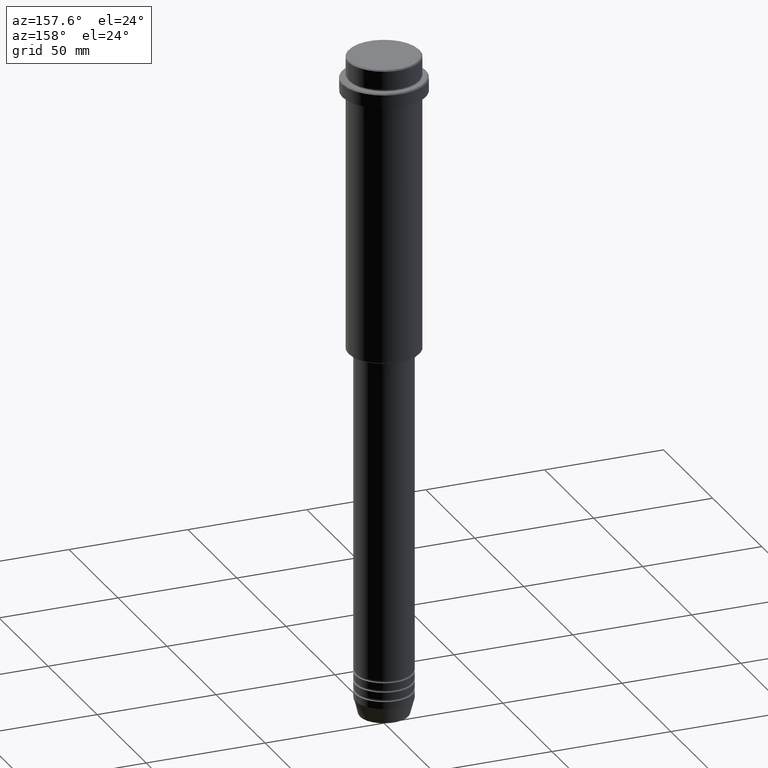
[diagram: clean part render]
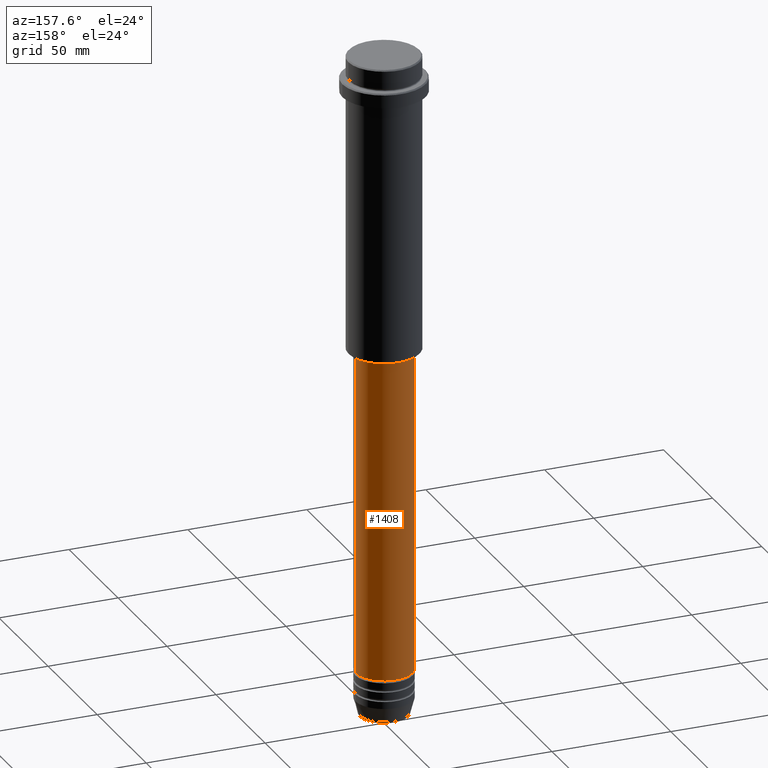
[diagram: same view with one face highlighted and labeled with its STEP entity id]
A machine part, auxiliary view. The second image highlights one B-rep face of the part: STEP entity #1408.
In plain terms, the highlighted cylindrical surface (edge-blend (fillet) strip) has radius 12 mm, axis along (-0, -0, 1).
Its self-contained STEP definition (entity closure, byte-faithful):
#221 = AXIS2_PLACEMENT_3D ( 'NONE', #957, #1078, #1060 ) ;
#238 = CIRCLE ( 'NONE', #1157, 12.00000000000000000 ) ;
#252 = VERTEX_POINT ( 'NONE', #832 ) ;
#264 = ORIENTED_EDGE ( 'NONE', *, *, #1307, .T. ) ;
#279 = CARTESIAN_POINT ( 'NONE',  ( 12.00000000000000000, 0.000000000000000000, -260.9999999999998863 ) ) ;
#280 = LINE ( 'NONE', #933, #1293 ) ;
#281 = EDGE_CURVE ( 'NONE', #1406, #1388, #280, .T. ) ;
#329 = DIRECTION ( 'NONE',  ( -0.000000000000000000, -0.000000000000000000, 1.000000000000000000 ) ) ;
#336 = CARTESIAN_POINT ( 'NONE',  ( -11.99999999999999822, 1.469576158976823750E-15, -126.0000000000001137 ) ) ;
#411 = DIRECTION ( 'NONE',  ( -0.000000000000000000, -0.000000000000000000, 1.000000000000000000 ) ) ;
#526 = ORIENTED_EDGE ( 'NONE', *, *, #1228, .F. ) ;
#611 = CARTESIAN_POINT ( 'NONE',  ( 0.000000000000000000, 0.000000000000000000, -260.9999999999998863 ) ) ;
#636 = VECTOR ( 'NONE', #329, 1000.000000000000000 ) ;
#638 = DIRECTION ( 'NONE',  ( -0.000000000000000000, -0.000000000000000000, 1.000000000000000000 ) ) ;
#656 = DIRECTION ( 'NONE',  ( 1.000000000000000000, 0.000000000000000000, 0.000000000000000000 ) ) ;
#660 = CARTESIAN_POINT ( 'NONE',  ( 12.00000000000000000, 0.000000000000000000, 0.000000000000000000 ) ) ;
#664 = FACE_OUTER_BOUND ( 'NONE', #718, .T. ) ;
#672 = ORIENTED_EDGE ( 'NONE', *, *, #281, .T. ) ;
#699 = AXIS2_PLACEMENT_3D ( 'NONE', #1209, #984, #656 ) ;
#718 = EDGE_LOOP ( 'NONE', ( #264, #672, #526, #1262 ) ) ;
#764 = CYLINDRICAL_SURFACE ( 'NONE', #699, 12.00000000000000000 ) ;
#780 = CIRCLE ( 'NONE', #221, 11.99999999999999822 ) ;
#832 = CARTESIAN_POINT ( 'NONE',  ( 11.99999999999999822, 0.000000000000000000, -126.0000000000001137 ) ) ;
#933 = CARTESIAN_POINT ( 'NONE',  ( -12.00000000000000000, 1.469576158976823947E-15, 0.000000000000000000 ) ) ;
#957 = CARTESIAN_POINT ( 'NONE',  ( 0.000000000000000000, 0.000000000000000000, -126.0000000000001137 ) ) ;
#983 = EDGE_CURVE ( 'NONE', #1272, #252, #1205, .T. ) ;
#984 = DIRECTION ( 'NONE',  ( -0.000000000000000000, -0.000000000000000000, 1.000000000000000000 ) ) ;
#1046 = DIRECTION ( 'NONE',  ( 1.000000000000000000, 0.000000000000000000, 0.000000000000000000 ) ) ;
#1060 = DIRECTION ( 'NONE',  ( 1.000000000000000000, 0.000000000000000000, 0.000000000000000000 ) ) ;
#1078 = DIRECTION ( 'NONE',  ( -0.000000000000000000, -0.000000000000000000, 1.000000000000000000 ) ) ;
#1102 = CARTESIAN_POINT ( 'NONE',  ( -12.00000000000000000, 1.469576158976823947E-15, -260.9999999999998863 ) ) ;
#1157 = AXIS2_PLACEMENT_3D ( 'NONE', #611, #411, #1046 ) ;
#1205 = LINE ( 'NONE', #660, #636 ) ;
#1209 = CARTESIAN_POINT ( 'NONE',  ( 0.000000000000000000, 0.000000000000000000, 0.000000000000000000 ) ) ;
#1228 = EDGE_CURVE ( 'NONE', #252, #1388, #780, .T. ) ;
#1262 = ORIENTED_EDGE ( 'NONE', *, *, #983, .F. ) ;
#1272 = VERTEX_POINT ( 'NONE', #279 ) ;
#1293 = VECTOR ( 'NONE', #638, 1000.000000000000000 ) ;
#1307 = EDGE_CURVE ( 'NONE', #1272, #1406, #238, .T. ) ;
#1388 = VERTEX_POINT ( 'NONE', #336 ) ;
#1406 = VERTEX_POINT ( 'NONE', #1102 ) ;
#1408 = ADVANCED_FACE ( 'NONE', ( #664 ), #764, .T. ) ;